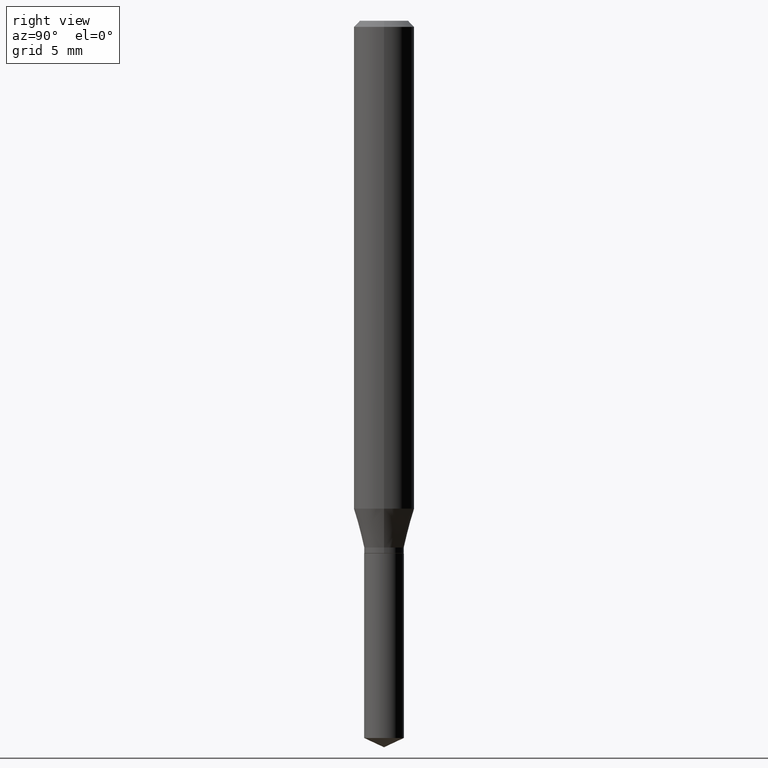
[diagram: clean part render]
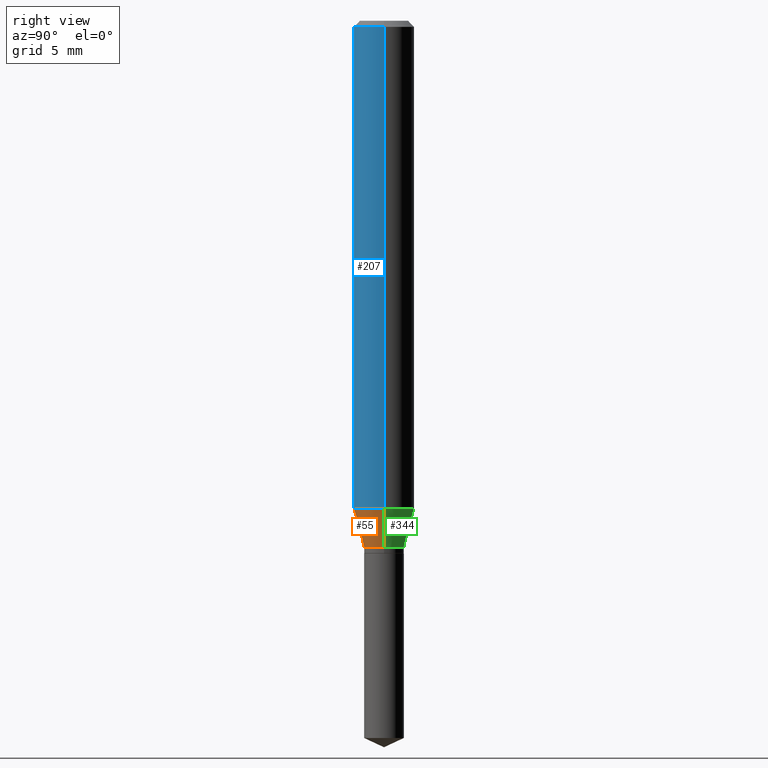
[diagram: same view with three faces highlighted in distinct colors, each labeled with its STEP entity id]
A machine part, right view with three faces highlighted in distinct colors.
Their STEP definitions:

[orange] entity #55 — the highlighted conical surface has half-angle 15 deg.
#2 = EDGE_CURVE ( 'NONE', #490, #420, #137, .T. ) ;
#14 = ORIENTED_EDGE ( 'NONE', *, *, #151, .T. ) ;
#55 = ADVANCED_FACE ( 'NONE', ( #108 ), #338, .T. ) ;
#62 = CARTESIAN_POINT ( 'NONE',  ( 2.463714223077906368E-29, -3.517530958629502494E-15, -1.007460907637268921 ) ) ;
#87 = DIRECTION ( 'NONE',  ( 1.000000000000000000, -6.982962677686261977E-15, 0.000000000000000000 ) ) ;
#88 = AXIS2_PLACEMENT_3D ( 'NONE', #485, #258, #110 ) ;
#108 = FACE_OUTER_BOUND ( 'NONE', #161, .T. ) ;
#110 = DIRECTION ( 'NONE',  ( 1.000000000000000000, -6.982962677686261977E-15, 0.000000000000000000 ) ) ;
#122 = EDGE_CURVE ( 'NONE', #466, #199, #377, .T. ) ;
#130 = DIRECTION ( 'NONE',  ( 1.000000000000000000, -6.982962677686264344E-15, 0.000000000000000000 ) ) ;
#136 = CARTESIAN_POINT ( 'NONE',  ( 0.06250000000000012490, -3.953966125984894953E-15, -1.007460907637268921 ) ) ;
#137 = CIRCLE ( 'NONE', #302, 0.06250000000000012490 ) ;
#142 = CARTESIAN_POINT ( 'NONE',  ( -0.04100000000000000172, -3.506361730598048595E-15, -1.087700000000000111 ) ) ;
#143 = AXIS2_PLACEMENT_3D ( 'NONE', #291, #251, #87 ) ;
#151 = EDGE_CURVE ( 'NONE', #199, #420, #384, .T. ) ;
#161 = EDGE_LOOP ( 'NONE', ( #259, #430, #14, #237 ) ) ;
#172 = CARTESIAN_POINT ( 'NONE',  ( 0.04100000000000000172, -4.083985722044826376E-15, -1.087700000000000111 ) ) ;
#192 = CARTESIAN_POINT ( 'NONE',  ( 0.04100000000000000172, -4.083985722044826376E-15, -1.087700000000000111 ) ) ;
#199 = VERTEX_POINT ( 'NONE', #192 ) ;
#237 = ORIENTED_EDGE ( 'NONE', *, *, #2, .F. ) ;
#251 = DIRECTION ( 'NONE',  ( -2.445468806185136597E-29, 3.491481338843145583E-15, 1.000000000000000000 ) ) ;
#258 = DIRECTION ( 'NONE',  ( -2.445468806185136597E-29, 3.491481338843145583E-15, 1.000000000000000000 ) ) ;
#259 = ORIENTED_EDGE ( 'NONE', *, *, #465, .F. ) ;
#265 = DIRECTION ( 'NONE',  ( 0.2588190451025213501, 1.565188264969621968E-15, 0.9659258262890682012 ) ) ;
#286 = LINE ( 'NONE', #142, #295 ) ;
#291 = CARTESIAN_POINT ( 'NONE',  ( 2.659936420487573506E-29, -3.797684252259689536E-15, -1.087700000000000111 ) ) ;
#292 = DIRECTION ( 'NONE',  ( -0.2588190451025213501, 5.211531920934551042E-15, 0.9659258262890682012 ) ) ;
#295 = VECTOR ( 'NONE', #292, 39.37007874015747433 ) ;
#302 = AXIS2_PLACEMENT_3D ( 'NONE', #62, #469, #130 ) ;
#316 = CARTESIAN_POINT ( 'NONE',  ( -0.04100000000000000172, -3.526961470497223126E-15, -1.087700000000000111 ) ) ;
#338 = CONICAL_SURFACE ( 'NONE', #88, 0.04100000000000000172, 0.2617993877991500740 ) ;
#377 = CIRCLE ( 'NONE', #143, 0.04100000000000000172 ) ;
#384 = LINE ( 'NONE', #172, #444 ) ;
#420 = VERTEX_POINT ( 'NONE', #136 ) ;
#430 = ORIENTED_EDGE ( 'NONE', *, *, #122, .T. ) ;
#444 = VECTOR ( 'NONE', #265, 39.37007874015747433 ) ;
#465 = EDGE_CURVE ( 'NONE', #466, #490, #286, .T. ) ;
#466 = VERTEX_POINT ( 'NONE', #316 ) ;
#469 = DIRECTION ( 'NONE',  ( -2.445468806185136597E-29, 3.491481338843145583E-15, 1.000000000000000000 ) ) ;
#474 = CARTESIAN_POINT ( 'NONE',  ( -0.06250000000000012490, -3.073441748779439089E-15, -1.007460907637268921 ) ) ;
#485 = CARTESIAN_POINT ( 'NONE',  ( 2.659936420487573506E-29, -3.797684252259689536E-15, -1.087700000000000111 ) ) ;
#490 = VERTEX_POINT ( 'NONE', #474 ) ;

[blue] entity #207 — the highlighted cylindrical surface (edge-blend (fillet) strip) has radius 1.5875 mm, axis along (-0, 0, 1).
#2 = EDGE_CURVE ( 'NONE', #490, #420, #137, .T. ) ;
#7 = LINE ( 'NONE', #282, #467 ) ;
#15 = AXIS2_PLACEMENT_3D ( 'NONE', #42, #463, #425 ) ;
#41 = DIRECTION ( 'NONE',  ( 1.000000000000000000, -6.982962677686267499E-15, 4.876176775795936353E-29 ) ) ;
#42 = CARTESIAN_POINT ( 'NONE',  ( 3.056836007731440539E-31, -4.364351673553960451E-17, -0.01250000000000008049 ) ) ;
#57 = CARTESIAN_POINT ( 'NONE',  ( -0.06250000000000000000, -1.336498027832457228E-15, -0.01250000000000008049 ) ) ;
#58 = EDGE_LOOP ( 'NONE', ( #187, #426, #185, #90 ) ) ;
#62 = CARTESIAN_POINT ( 'NONE',  ( 2.463714223077906368E-29, -3.517530958629502494E-15, -1.007460907637268921 ) ) ;
#90 = ORIENTED_EDGE ( 'NONE', *, *, #216, .F. ) ;
#130 = DIRECTION ( 'NONE',  ( 1.000000000000000000, -6.982962677686264344E-15, 0.000000000000000000 ) ) ;
#136 = CARTESIAN_POINT ( 'NONE',  ( 0.06250000000000012490, -3.953966125984894953E-15, -1.007460907637268921 ) ) ;
#137 = CIRCLE ( 'NONE', #302, 0.06250000000000012490 ) ;
#155 = DIRECTION ( 'NONE',  ( -2.445468806185136877E-29, 3.491481338843145188E-15, 1.000000000000000000 ) ) ;
#185 = ORIENTED_EDGE ( 'NONE', *, *, #261, .T. ) ;
#187 = ORIENTED_EDGE ( 'NONE', *, *, #398, .F. ) ;
#194 = CYLINDRICAL_SURFACE ( 'NONE', #403, 0.06250000000000005551 ) ;
#206 = CARTESIAN_POINT ( 'NONE',  ( 0.06250000000000000000, -4.800786840909312308E-16, -0.01250000000000008049 ) ) ;
#207 = ADVANCED_FACE ( 'NONE', ( #228 ), #194, .T. ) ;
#216 = EDGE_CURVE ( 'NONE', #471, #254, #436, .T. ) ;
#226 = VECTOR ( 'NONE', #249, 39.37007874015748143 ) ;
#228 = FACE_OUTER_BOUND ( 'NONE', #58, .T. ) ;
#249 = DIRECTION ( 'NONE',  ( -2.445468806185136877E-29, 3.491481338843145188E-15, 1.000000000000000000 ) ) ;
#254 = VERTEX_POINT ( 'NONE', #206 ) ;
#261 = EDGE_CURVE ( 'NONE', #420, #254, #7, .T. ) ;
#282 = CARTESIAN_POINT ( 'NONE',  ( 0.06250000000000005551, -4.364351673553921131E-16, 3.047610484872463023E-30 ) ) ;
#302 = AXIS2_PLACEMENT_3D ( 'NONE', #62, #469, #130 ) ;
#313 = CARTESIAN_POINT ( 'NONE',  ( 0.000000000000000000, 0.000000000000000000, 0.000000000000000000 ) ) ;
#360 = LINE ( 'NONE', #443, #226 ) ;
#398 = EDGE_CURVE ( 'NONE', #490, #471, #360, .T. ) ;
#403 = AXIS2_PLACEMENT_3D ( 'NONE', #313, #473, #41 ) ;
#420 = VERTEX_POINT ( 'NONE', #136 ) ;
#425 = DIRECTION ( 'NONE',  ( 1.000000000000000000, -6.982962677686266711E-15, 0.000000000000000000 ) ) ;
#426 = ORIENTED_EDGE ( 'NONE', *, *, #2, .T. ) ;
#436 = CIRCLE ( 'NONE', #15, 0.06250000000000000000 ) ;
#443 = CARTESIAN_POINT ( 'NONE',  ( -0.06250000000000005551, 4.440892098500630106E-16, -3.074334431409318916E-30 ) ) ;
#463 = DIRECTION ( 'NONE',  ( -2.445468806185136597E-29, 3.491481338843145583E-15, 1.000000000000000000 ) ) ;
#467 = VECTOR ( 'NONE', #155, 39.37007874015748143 ) ;
#469 = DIRECTION ( 'NONE',  ( -2.445468806185136597E-29, 3.491481338843145583E-15, 1.000000000000000000 ) ) ;
#471 = VERTEX_POINT ( 'NONE', #57 ) ;
#473 = DIRECTION ( 'NONE',  ( -2.445468806185136597E-29, 3.491481338843145583E-15, 1.000000000000000000 ) ) ;
#474 = CARTESIAN_POINT ( 'NONE',  ( -0.06250000000000012490, -3.073441748779439089E-15, -1.007460907637268921 ) ) ;
#490 = VERTEX_POINT ( 'NONE', #474 ) ;

[green] entity #344 — the highlighted conical surface has half-angle 15 deg.
#10 = CONICAL_SURFACE ( 'NONE', #448, 0.04100000000000000172, 0.2617993877991500740 ) ;
#21 = ORIENTED_EDGE ( 'NONE', *, *, #235, .F. ) ;
#35 = FACE_OUTER_BOUND ( 'NONE', #484, .T. ) ;
#113 = ORIENTED_EDGE ( 'NONE', *, *, #151, .F. ) ;
#121 = DIRECTION ( 'NONE',  ( -2.445468806185136597E-29, 3.491481338843145583E-15, 1.000000000000000000 ) ) ;
#136 = CARTESIAN_POINT ( 'NONE',  ( 0.06250000000000012490, -3.953966125984894953E-15, -1.007460907637268921 ) ) ;
#139 = DIRECTION ( 'NONE',  ( -2.445468806185136597E-29, 3.491481338843145583E-15, 1.000000000000000000 ) ) ;
#142 = CARTESIAN_POINT ( 'NONE',  ( -0.04100000000000000172, -3.506361730598048595E-15, -1.087700000000000111 ) ) ;
#145 = AXIS2_PLACEMENT_3D ( 'NONE', #307, #121, #339 ) ;
#151 = EDGE_CURVE ( 'NONE', #199, #420, #384, .T. ) ;
#166 = CIRCLE ( 'NONE', #145, 0.06250000000000012490 ) ;
#172 = CARTESIAN_POINT ( 'NONE',  ( 0.04100000000000000172, -4.083985722044826376E-15, -1.087700000000000111 ) ) ;
#192 = CARTESIAN_POINT ( 'NONE',  ( 0.04100000000000000172, -4.083985722044826376E-15, -1.087700000000000111 ) ) ;
#199 = VERTEX_POINT ( 'NONE', #192 ) ;
#235 = EDGE_CURVE ( 'NONE', #420, #490, #166, .T. ) ;
#236 = ORIENTED_EDGE ( 'NONE', *, *, #465, .T. ) ;
#265 = DIRECTION ( 'NONE',  ( 0.2588190451025213501, 1.565188264969621968E-15, 0.9659258262890682012 ) ) ;
#266 = EDGE_CURVE ( 'NONE', #199, #466, #305, .T. ) ;
#286 = LINE ( 'NONE', #142, #295 ) ;
#292 = DIRECTION ( 'NONE',  ( -0.2588190451025213501, 5.211531920934551042E-15, 0.9659258262890682012 ) ) ;
#295 = VECTOR ( 'NONE', #292, 39.37007874015747433 ) ;
#304 = DIRECTION ( 'NONE',  ( 1.000000000000000000, -6.982962677686261977E-15, 0.000000000000000000 ) ) ;
#305 = CIRCLE ( 'NONE', #460, 0.04100000000000000172 ) ;
#307 = CARTESIAN_POINT ( 'NONE',  ( 2.463714223077906368E-29, -3.517530958629502494E-15, -1.007460907637268921 ) ) ;
#316 = CARTESIAN_POINT ( 'NONE',  ( -0.04100000000000000172, -3.526961470497223126E-15, -1.087700000000000111 ) ) ;
#327 = CARTESIAN_POINT ( 'NONE',  ( 2.659936420487573506E-29, -3.797684252259689536E-15, -1.087700000000000111 ) ) ;
#339 = DIRECTION ( 'NONE',  ( 1.000000000000000000, -6.982962677686264344E-15, 0.000000000000000000 ) ) ;
#340 = ORIENTED_EDGE ( 'NONE', *, *, #266, .T. ) ;
#344 = ADVANCED_FACE ( 'NONE', ( #35 ), #10, .T. ) ;
#384 = LINE ( 'NONE', #172, #444 ) ;
#420 = VERTEX_POINT ( 'NONE', #136 ) ;
#421 = DIRECTION ( 'NONE',  ( -2.445468806185136597E-29, 3.491481338843145583E-15, 1.000000000000000000 ) ) ;
#444 = VECTOR ( 'NONE', #265, 39.37007874015747433 ) ;
#446 = DIRECTION ( 'NONE',  ( 1.000000000000000000, -6.982962677686261977E-15, 0.000000000000000000 ) ) ;
#448 = AXIS2_PLACEMENT_3D ( 'NONE', #327, #139, #446 ) ;
#458 = CARTESIAN_POINT ( 'NONE',  ( 2.659936420487573506E-29, -3.797684252259689536E-15, -1.087700000000000111 ) ) ;
#460 = AXIS2_PLACEMENT_3D ( 'NONE', #458, #421, #304 ) ;
#465 = EDGE_CURVE ( 'NONE', #466, #490, #286, .T. ) ;
#466 = VERTEX_POINT ( 'NONE', #316 ) ;
#474 = CARTESIAN_POINT ( 'NONE',  ( -0.06250000000000012490, -3.073441748779439089E-15, -1.007460907637268921 ) ) ;
#484 = EDGE_LOOP ( 'NONE', ( #340, #236, #21, #113 ) ) ;
#490 = VERTEX_POINT ( 'NONE', #474 ) ;